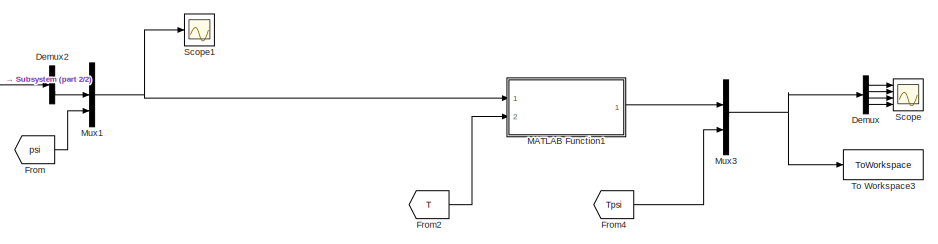
[diagram: root canvas - part 1/2, top right region]
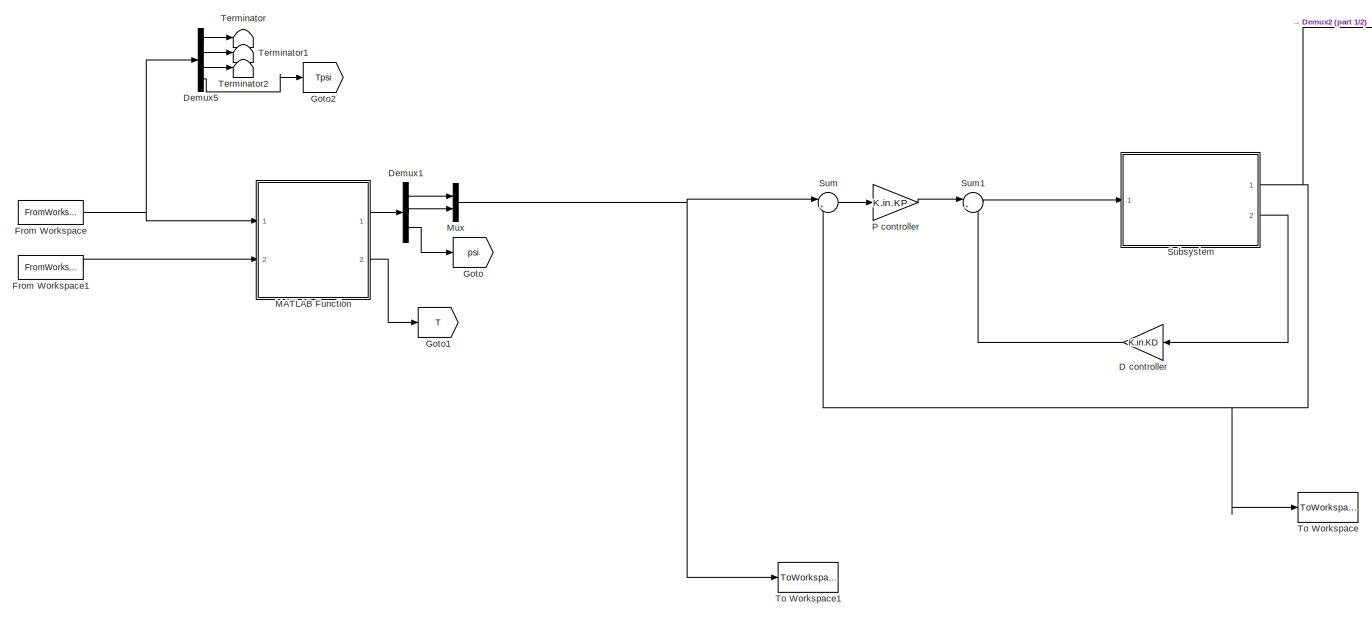
[diagram: root canvas - part 2/2, left side, full height]
MODEL slx_b1a2c2acbaa9
KIND model
CONFIG AbsTol = auto
CONFIG FixedStep = auto
CONFIG MaxStep = auto
CONFIG MinStep = auto
CONFIG RelTol = 1e-3
CONFIG SampleTimeConstraint = Unconstrained
CONFIG Solver = ode45
CONFIG SolverMode = Auto
CONFIG SolverName = ode45
CONFIG StartTime = 0.0
CONFIG StopTime = Tfin
BLOCK [Gain] D controller
  Gain = K.in.KD
  Multiplication = Matrix(K*u)
  OutDataTypeStr = Inherit: Inherit via internal rule
  ParamDataTypeStr = Inherit: Inherit via internal rule
  SaturateOnIntegerOverflow = off
BLOCK [Demux] Demux
  DisplayOption = bar
  Ports = [1, 4]
BLOCK [Demux] Demux1
  DisplayOption = bar
  Outputs = 3
  Ports = [1, 3]
BLOCK [Demux] Demux2
  DisplayOption = bar
  Outputs = 2
  Ports = [1, 2]
BLOCK [Demux] Demux5
  DisplayOption = bar
  Ports = [1, 4]
BLOCK [From] From
  GotoTag = psi
BLOCK [FromWorkspace] From Workspace
  Interpolate = off
  OutputAfterFinalValue = Setting to zero
  SampleTime = param.hs
  VariableName = u_des
  ZeroCross = on
BLOCK [FromWorkspace] From Workspace1
  Interpolate = off
  OutputAfterFinalValue = Setting to zero
  SampleTime = param.hs
  VariableName = state_out_in
  ZeroCross = on
BLOCK [From] From2
  GotoTag = T
BLOCK [From] From4
  GotoTag = Tpsi
BLOCK [Goto] Goto
  GotoTag = psi
BLOCK [Goto] Goto1
  GotoTag = T
BLOCK [Goto] Goto2
  GotoTag = Tpsi
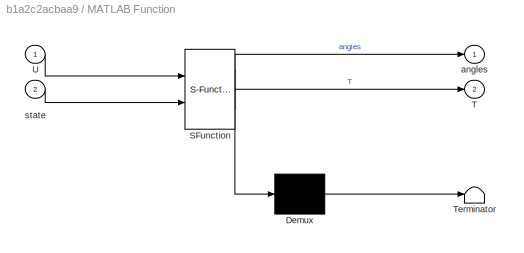
BLOCK [SubSystem] MATLAB Function
  ErrorFcn = Stateflow.Translate.translate
  PermitHierarchicalResolution = ExplicitOnly
  Ports = [2, 2]
  RequestExecContextInheritance = off
  SFBlockType = MATLAB Function
  TreatAsAtomicUnit = on
BLOCK [Demux] MATLAB Function/ Demux 
  Outputs = 1
  Ports = [1, 1]
BLOCK [S-Function] MATLAB Function/ SFunction 
  EnableBusSupport = on
  FunctionName = sf_sfun
  PortCounts = [2 3]
  Ports = [2, 3]
  Tag = Stateflow S-Function model_inner 2
BLOCK [Terminator] MATLAB Function/ Terminator 
BLOCK [Outport] MATLAB Function/T
  IconDisplay = Port number
  Port = 2
BLOCK [Inport] MATLAB Function/U
  IconDisplay = Port number
BLOCK [Outport] MATLAB Function/angles
  IconDisplay = Port number
BLOCK [Inport] MATLAB Function/state
  IconDisplay = Port number
  Port = 2
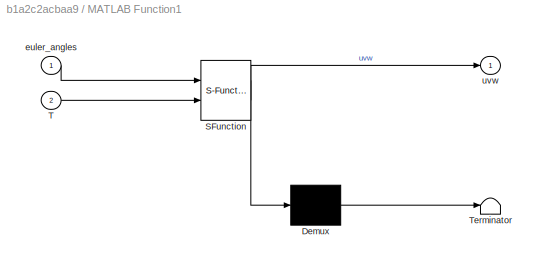
BLOCK [SubSystem] MATLAB Function1
  ErrorFcn = Stateflow.Translate.translate
  PermitHierarchicalResolution = ExplicitOnly
  Ports = [2, 1]
  RequestExecContextInheritance = off
  SFBlockType = MATLAB Function
  TreatAsAtomicUnit = on
BLOCK [Demux] MATLAB Function1/ Demux 
  Outputs = 1
  Ports = [1, 1]
BLOCK [S-Function] MATLAB Function1/ SFunction 
  EnableBusSupport = on
  FunctionName = sf_sfun
  PortCounts = [2 2]
  Ports = [2, 2]
  Tag = Stateflow S-Function model_inner 3
BLOCK [Terminator] MATLAB Function1/ Terminator 
BLOCK [Inport] MATLAB Function1/T
  IconDisplay = Port number
  Port = 2
BLOCK [Inport] MATLAB Function1/euler_angles
  IconDisplay = Port number
BLOCK [Outport] MATLAB Function1/uvw
  IconDisplay = Port number
BLOCK [Mux] Mux
  DisplayOption = bar
  Inputs = 2
  Ports = [2, 1]
BLOCK [Mux] Mux1
  DisplayOption = bar
  Inputs = 3
  Ports = [3, 1]
BLOCK [Mux] Mux3
  DisplayOption = bar
  Inputs = 2
  Ports = [2, 1]
BLOCK [Gain] P controller
  Gain = K.in.KP
  Multiplication = Matrix(K*u)
  OutDataTypeStr = Inherit: Inherit via internal rule
  ParamDataTypeStr = Inherit: Inherit via internal rule
  SaturateOnIntegerOverflow = off
BLOCK [Scope] Scope
  Floating = off
  NumInputPorts = 4
  Ports = [4]
  YMax = 5~5~5~5
  YMin = -5~-5~-5~-5
BLOCK [Scope] Scope1
  Floating = off
  NumInputPorts = 1
  Ports = [1]
  SaveName = ScopeData1
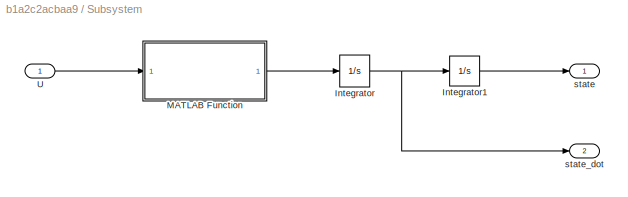
BLOCK [SubSystem] Subsystem
  Ports = [1, 2]
  RequestExecContextInheritance = off
BLOCK [Integrator] Subsystem/Integrator
  InitialCondition = init_in_dot
  Ports = [1, 1]
BLOCK [Integrator] Subsystem/Integrator1
  InitialCondition = init_in
  Ports = [1, 1]
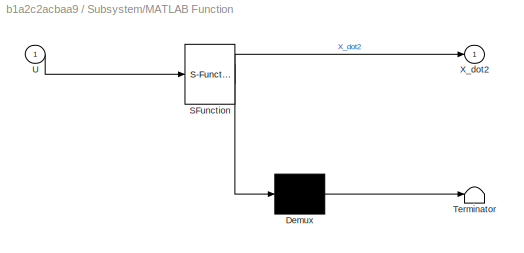
BLOCK [SubSystem] Subsystem/MATLAB Function
  ErrorFcn = Stateflow.Translate.translate
  PermitHierarchicalResolution = ExplicitOnly
  Ports = [1, 1]
  RequestExecContextInheritance = off
  SFBlockType = MATLAB Function
  TreatAsAtomicUnit = on
BLOCK [Demux] Subsystem/MATLAB Function/ Demux 
  Outputs = 1
  Ports = [1, 1]
BLOCK [S-Function] Subsystem/MATLAB Function/ SFunction 
  EnableBusSupport = on
  FunctionName = sf_sfun
  PortCounts = [1 2]
  Ports = [1, 2]
  Tag = Stateflow S-Function model_inner 5
BLOCK [Terminator] Subsystem/MATLAB Function/ Terminator 
BLOCK [Inport] Subsystem/MATLAB Function/U
  IconDisplay = Port number
BLOCK [Outport] Subsystem/MATLAB Function/X_dot2
  IconDisplay = Port number
BLOCK [Inport] Subsystem/U
  IconDisplay = Port number
BLOCK [Outport] Subsystem/state
  IconDisplay = Port number
BLOCK [Outport] Subsystem/state_dot
  IconDisplay = Port number
  Port = 2
BLOCK [Sum] Sum
  IconShape = round
  InputSameDT = off
  Inputs = |+-
  OutDataTypeStr = Inherit: Inherit via internal rule
  Ports = [2, 1]
  SaturateOnIntegerOverflow = off
BLOCK [Sum] Sum1
  IconShape = round
  InputSameDT = off
  Inputs = |+-
  OutDataTypeStr = Inherit: Inherit via internal rule
  Ports = [2, 1]
  SaturateOnIntegerOverflow = off
BLOCK [Terminator] Terminator
BLOCK [Terminator] Terminator1
BLOCK [Terminator] Terminator2
BLOCK [ToWorkspace] To Workspace
  FixptAsFi = on
  MaxDataPoints = inf
  Ports = [1]
  SampleTime = -1
  Save2DSignal = 3-D array (concatenate along third dimension)
  SaveFormat = Structure With Time
  VariableName = state_B
BLOCK [ToWorkspace] To Workspace1
  FixptAsFi = on
  MaxDataPoints = inf
  Ports = [1]
  SampleTime = -1
  Save2DSignal = 3-D array (concatenate along third dimension)
  SaveFormat = Structure With Time
  VariableName = u_ref_B
BLOCK [ToWorkspace] To Workspace3
  FixptAsFi = on
  MaxDataPoints = inf
  Ports = [1]
  SampleTime = -1
  Save2DSignal = 3-D array (concatenate along third dimension)
  SaveFormat = Structure With Time
  VariableName = in_state
LINE D controller:1 -> Sum1:2
LINE Demux1:1 -> Mux:1
LINE Demux1:2 -> Mux:2
LINE Demux1:3 -> Goto:1
LINE Demux2:1 -> Mux1:1
LINE Demux2:2 -> Mux1:2
LINE Demux5:1 -> Terminator:1
LINE Demux5:2 -> Terminator1:1
LINE Demux5:3 -> Terminator2:1
LINE Demux5:4 -> Goto2:1
LINE Demux:1 -> Scope:1
LINE Demux:2 -> Scope:2
LINE Demux:3 -> Scope:3
LINE Demux:4 -> Scope:4
LINE From Workspace1:1 -> MATLAB Function:2
NET From Workspace:1 -> Demux5:1, MATLAB Function:1
LINE From2:1 -> MATLAB Function1:2
LINE From4:1 -> Mux3:2
LINE From:1 -> Mux1:3
LINE MATLAB Function1:1 -> Mux3:1
LINE MATLAB Function:1 -> Demux1:1
LINE MATLAB Function:2 -> Goto1:1
NET Mux1:1 -> MATLAB Function1:1, Scope1:1
NET Mux3:1 -> Demux:1, To Workspace3:1
NET Mux:1 -> Sum:1, To Workspace1:1
LINE P controller:1 -> Sum1:1
LINE Subsystem/Integrator1:1 -> Subsystem/state:1
NET Subsystem/Integrator:1 -> Subsystem/Integrator1:1, Subsystem/state_dot:1
LINE Subsystem/MATLAB Function:1 -> Subsystem/Integrator:1
LINE Subsystem/U:1 -> Subsystem/MATLAB Function:1
NET Subsystem:1 -> Demux2:1, Sum:2, To Workspace:1
LINE Subsystem:2 -> D controller:1
LINE Sum1:1 -> Subsystem:1
LINE Sum:1 -> P controller:1
note: NET lines group one-source signal fan-out (src -> all destinations, sorted); 1:1 wires keep LINE
CHART MATLAB Function states=1 transitions=1
  STATE_LABEL 'eML_blk_kernel()'
  STATE_LABEL 'SCRIPT:\nfunction [angles, T] = fcn1(U, state)\n%#codegen\n% Mathematical derivation of formulas in XXXX\n\n% Inputs\n    u_abs = U(1);   v_abs = U(2);   w_abs = U(3);\n    Tpsi = U(4);\n    psi = state(4);\n    \n% Torque\nT = sqrt( u_abs^2 + v_abs^2 + w_abs^2 );\n\n% normalization of thrust components\nu = u_abs/T;\nv = v_abs/T;\nw = w_abs/T;\n\n% Euler angles\n\n    % Considering w =! 0 (always true)\n    %   Consi...<+1578ch>'
CHART MATLAB Function1 states=1 transitions=1
  STATE_LABEL 'eML_blk_kernel()'
  STATE_LABEL 'SCRIPT:\nfunction uvw  = fcn2( euler_angles, T )\n%#codegen\n% call RT2uvw\n\n% inputs\n    phi   = euler_angles(1);\n    theta = euler_angles(2);\n    Psi   = euler_angles(3);\n    \n% rotation matrix\n    R = [cos(theta)*cos(Psi)  sin(phi)*sin(theta)*cos(Psi)-cos(phi)*sin(Psi)  cos(phi)*sin(theta)*cos(Psi)+sin(phi)*sin(Psi)\n         cos(theta)*sin(Psi)  sin(phi)*sin(theta)*sin(Psi)+cos(phi)*sin(Psi)  cos(p...<+258ch>'
CHART Subsystem/MATLAB Function states=1 transitions=1
  STATE_LABEL 'eML_blk_kernel()'
  STATE_LABEL 'SCRIPT:\nfunction X_dot2   = sys_in ( U )\n%#codegen\n% parameters\n    Ix = 0.002237568100000;   \n    Iy = 0.002985236000000;\n\nX_dot2 = [ 0; 0];\nX_dot2(1) = U(1) / Iy;\nX_dot2(2) = U(2) / Ix;\n\n\n\n'
